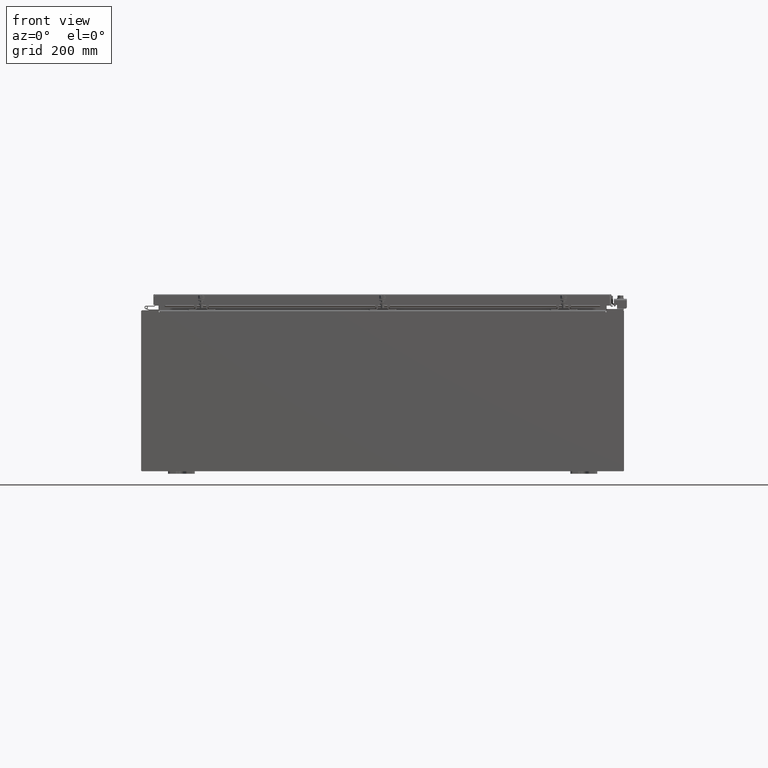
[diagram: clean part render]
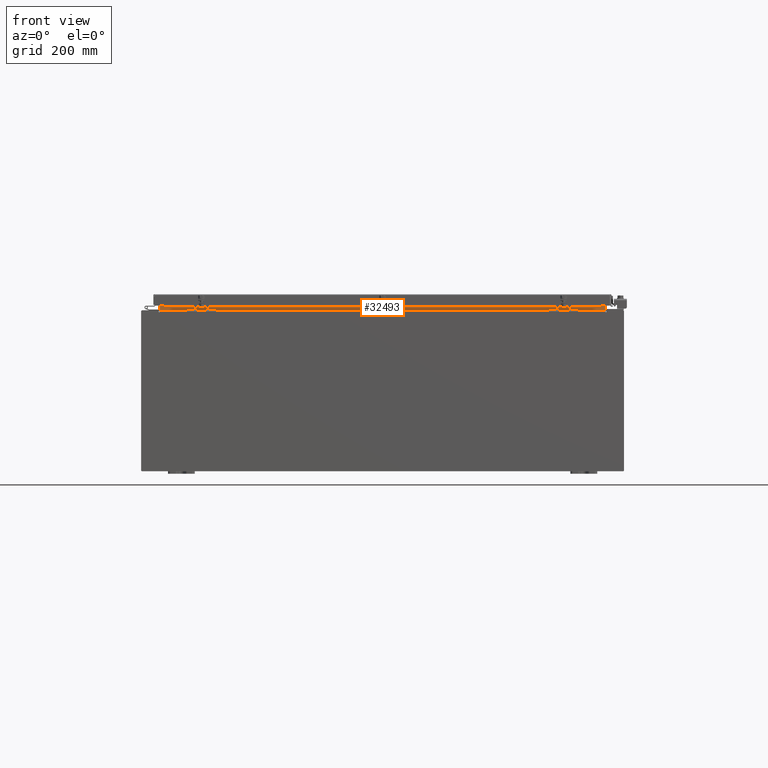
[diagram: same view with one face highlighted and labeled with its STEP entity id]
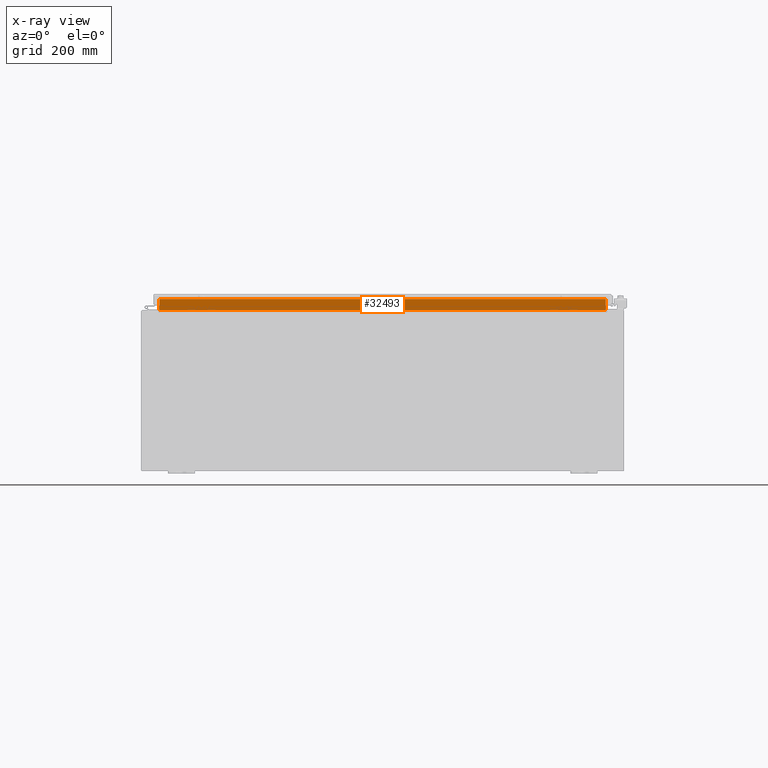
[diagram: x-ray of the same camera — body ghosted, the highlighted face saturated]
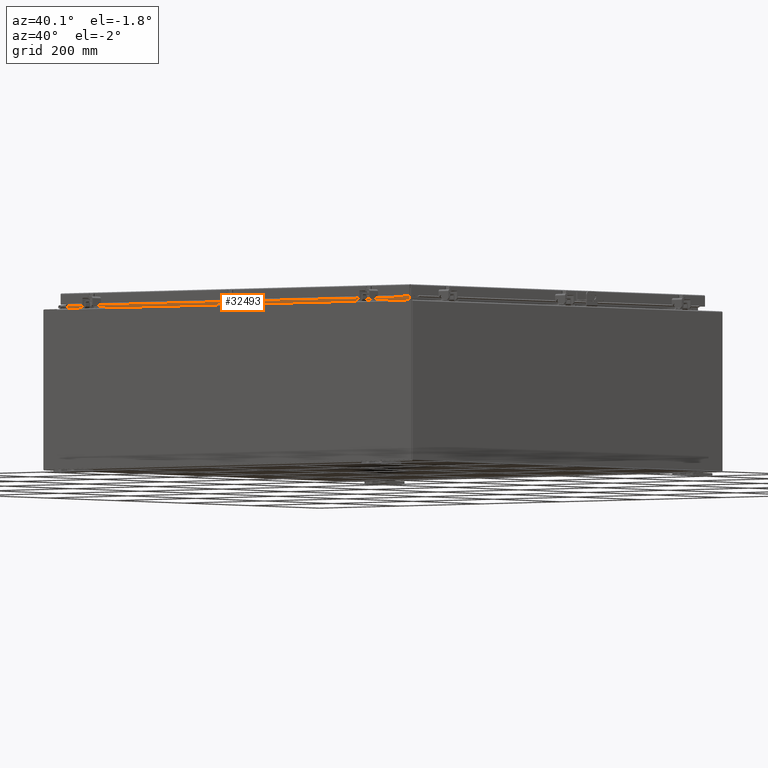
[diagram: same view with one face highlighted and labeled with its STEP entity id]
A machine part, front view. The second image highlights one B-rep face of the part: STEP entity #32493.
The next image is the same camera in x-ray: the body ghosted, the highlighted face saturated — about 0% of this face is hidden behind the body in this view.
A second angle (auxiliary view) of the same face is appended — the face is thin or edge-on in the first view.
In plain terms, the highlighted planar face has unit normal (-0, -1, 0).
Its self-contained STEP definition (entity closure, byte-faithful):
#412 = CARTESIAN_POINT ( 'NONE',  ( -16.63719999999999600, -1.300300000000001300, 5.999999999999950300 ) ) ;
#1912 = LINE ( 'NONE', #12506, #10301 ) ;
#4491 = DIRECTION ( 'NONE',  ( 1.998401444325281800E-015, -1.288339519248326200E-015, 1.000000000000000000 ) ) ;
#5044 = LINE ( 'NONE', #45694, #22951 ) ;
#5892 = EDGE_CURVE ( 'NONE', #26090, #40630, #23502, .T. ) ;
#6954 = FACE_OUTER_BOUND ( 'NONE', #33937, .T. ) ;
#10301 = VECTOR ( 'NONE', #41187, 39.37007874015748100 ) ;
#11471 = CARTESIAN_POINT ( 'NONE',  ( 16.63720000000002800, -1.300300000000001300, 6.837600000000053400 ) ) ;
#12506 = CARTESIAN_POINT ( 'NONE',  ( -16.63719999999999600, -1.300300000000001300, 6.012999999999952800 ) ) ;
#14193 = CARTESIAN_POINT ( 'NONE',  ( 16.63720000000002800, -1.300300000000001300, 6.925300000000054200 ) ) ;
#14483 = DIRECTION ( 'NONE',  ( 1.998401444325281800E-015, -1.288339519248326200E-015, 1.000000000000000000 ) ) ;
#15307 = AXIS2_PLACEMENT_3D ( 'NONE', #40191, #25928, #4491 ) ;
#18274 = ORIENTED_EDGE ( 'NONE', *, *, #40379, .F. ) ;
#18414 = CARTESIAN_POINT ( 'NONE',  ( -16.63720000000000000, -1.300300000000001300, 6.012999999999952800 ) ) ;
#18877 = VECTOR ( 'NONE', #14483, 39.37007874015748100 ) ;
#20613 = DIRECTION ( 'NONE',  ( -1.000000000000000000, -6.451735445156462500E-016, -1.998401444325282200E-015 ) ) ;
#22066 = VERTEX_POINT ( 'NONE', #26463 ) ;
#22951 = VECTOR ( 'NONE', #20613, 39.37007874015748100 ) ;
#23502 = LINE ( 'NONE', #412, #31932 ) ;
#24228 = EDGE_CURVE ( 'NONE', #40630, #22066, #1912, .T. ) ;
#25928 = DIRECTION ( 'NONE',  ( 6.451735445156494100E-016, 1.000000000000000000, 1.288339519248324800E-015 ) ) ;
#26090 = VERTEX_POINT ( 'NONE', #31696 ) ;
#26463 = CARTESIAN_POINT ( 'NONE',  ( 16.63720000000000400, -1.300299999999999300, 6.013000000000050500 ) ) ;
#28423 = LINE ( 'NONE', #14193, #18877 ) ;
#30088 = ORIENTED_EDGE ( 'NONE', *, *, #5892, .F. ) ;
#31696 = CARTESIAN_POINT ( 'NONE',  ( -16.63719999999996400, -1.300300000000001300, 6.837599999999951300 ) ) ;
#31932 = VECTOR ( 'NONE', #43285, 39.37007874015748100 ) ;
#32493 = ADVANCED_FACE ( 'NONE', ( #6954 ), #43780, .T. ) ;
#32692 = ORIENTED_EDGE ( 'NONE', *, *, #45325, .F. ) ;
#33937 = EDGE_LOOP ( 'NONE', ( #30088, #18274, #32692, #37182 ) ) ;
#37182 = ORIENTED_EDGE ( 'NONE', *, *, #24228, .F. ) ;
#40191 = CARTESIAN_POINT ( 'NONE',  ( -8.389191623423940600E-016, -1.300299999999994900, -1.092739197465705300E-015 ) ) ;
#40379 = EDGE_CURVE ( 'NONE', #41190, #26090, #5044, .T. ) ;
#40630 = VERTEX_POINT ( 'NONE', #18414 ) ;
#41187 = DIRECTION ( 'NONE',  ( 1.000000000000000000, 6.780137819794533300E-016, 1.998401444325281800E-015 ) ) ;
#41190 = VERTEX_POINT ( 'NONE', #11471 ) ;
#43285 = DIRECTION ( 'NONE',  ( -1.998401444325281800E-015, 1.288339519248326200E-015, -1.000000000000000000 ) ) ;
#43780 = PLANE ( 'NONE',  #15307 ) ;
#45325 = EDGE_CURVE ( 'NONE', #22066, #41190, #28423, .T. ) ;
#45694 = CARTESIAN_POINT ( 'NONE',  ( 16.63720000000002500, -1.300299999999999300, 6.837600000000053400 ) ) ;